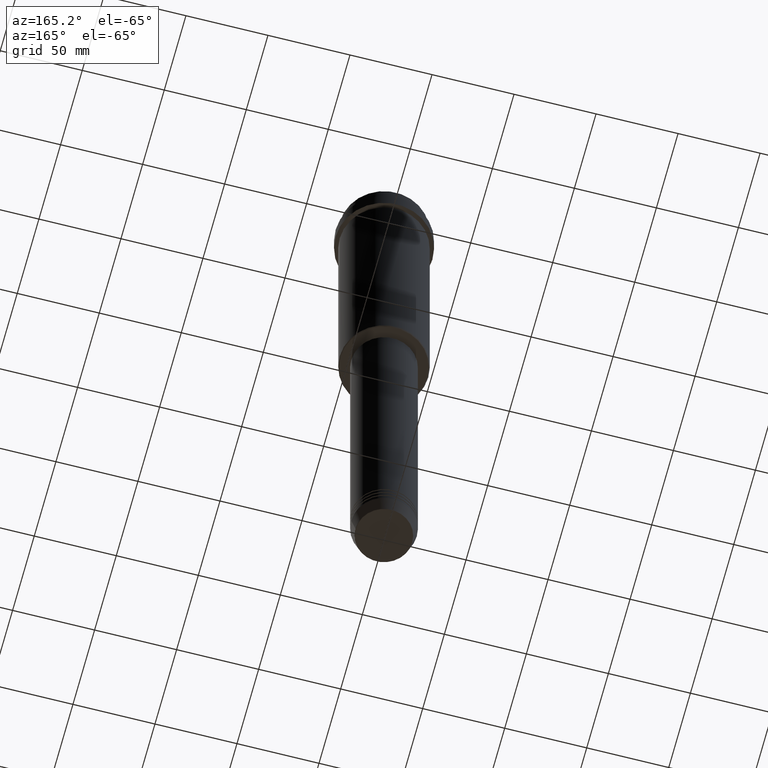
[diagram: clean part render]
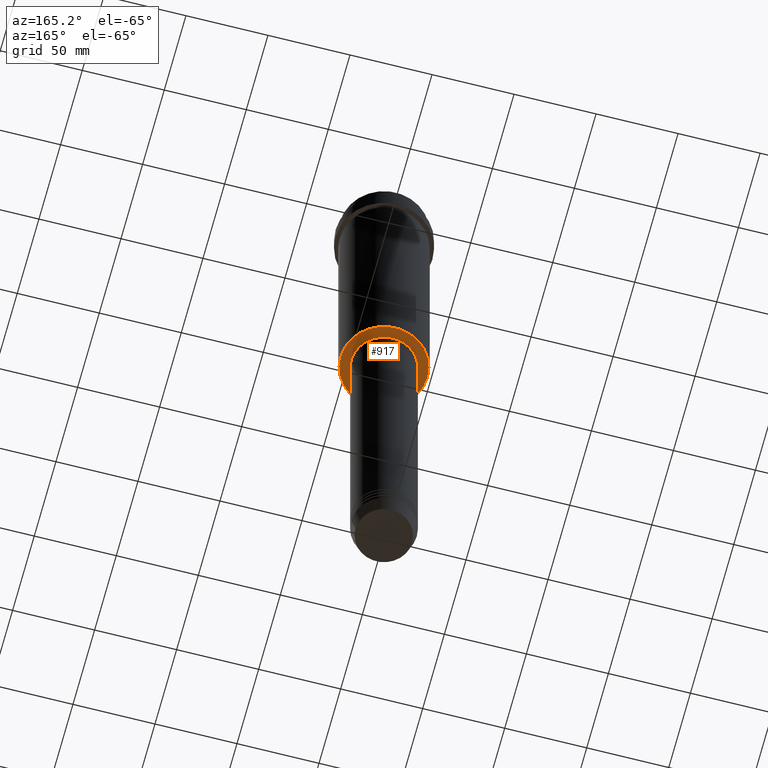
[diagram: same view with one face highlighted and labeled with its STEP entity id]
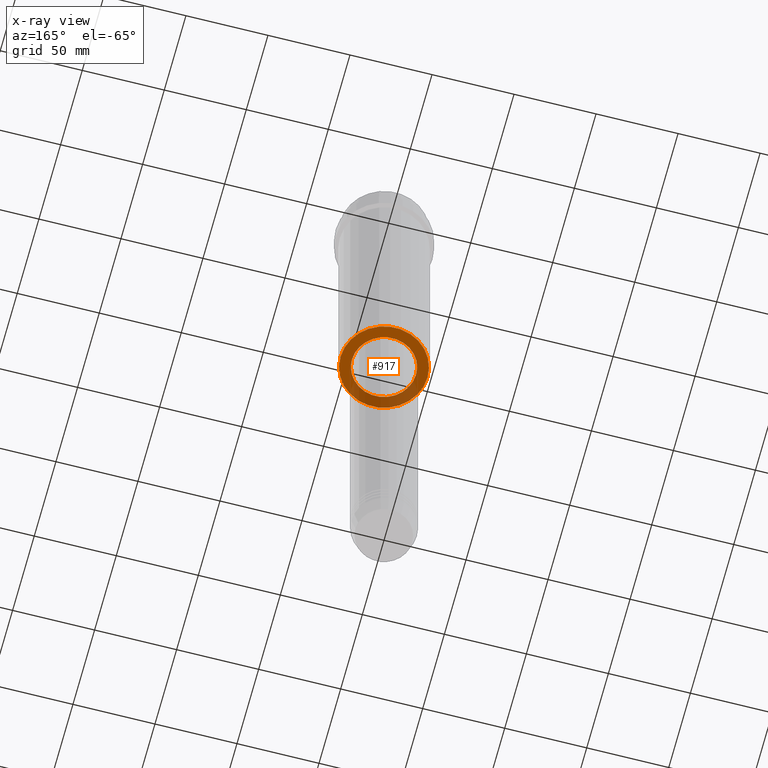
[diagram: x-ray of the same camera — body ghosted, the highlighted face saturated]
A machine part, auxiliary view. The second image highlights one B-rep face of the part: STEP entity #917.
The next image is the same camera in x-ray: the body ghosted, the highlighted face saturated — about 31% of this face is hidden behind the body in this view.
In plain terms, the highlighted planar face has unit normal (0, 0, -1).
Its self-contained STEP definition (entity closure, byte-faithful):
#24 = DIRECTION ( 'NONE',  ( -1.000000000000000000, 0.000000000000000000, -0.000000000000000000 ) ) ;
#27 = DIRECTION ( 'NONE',  ( 0.000000000000000000, 0.000000000000000000, -1.000000000000000000 ) ) ;
#49 = VERTEX_POINT ( 'NONE', #1391 ) ;
#83 = AXIS2_PLACEMENT_3D ( 'NONE', #1012, #27, #907 ) ;
#104 = CIRCLE ( 'NONE', #885, 19.49999999999999289 ) ;
#148 = CARTESIAN_POINT ( 'NONE',  ( 19.49999999999999289, 0.000000000000000000, -187.9999999999999716 ) ) ;
#163 = CARTESIAN_POINT ( 'NONE',  ( -26.50000000000007816, 3.275930187719175074E-15, -188.0000000000000000 ) ) ;
#186 = CARTESIAN_POINT ( 'NONE',  ( 0.000000000000000000, 0.000000000000000000, -187.9999999999999716 ) ) ;
#219 = AXIS2_PLACEMENT_3D ( 'NONE', #242, #678, #24 ) ;
#242 = CARTESIAN_POINT ( 'NONE',  ( 0.000000000000000000, 27.00000000000000355, -188.0000000000000000 ) ) ;
#243 = EDGE_CURVE ( 'NONE', #49, #591, #974, .T. ) ;
#293 = DIRECTION ( 'NONE',  ( -0.000000000000000000, -0.000000000000000000, 1.000000000000000000 ) ) ;
#305 = DIRECTION ( 'NONE',  ( 1.000000000000000000, 0.000000000000000000, 0.000000000000000000 ) ) ;
#416 = DIRECTION ( 'NONE',  ( 1.000000000000000000, 0.000000000000000000, 0.000000000000000000 ) ) ;
#441 = CARTESIAN_POINT ( 'NONE',  ( -19.49999999999999289, 2.388061258337338150E-15, -187.9999999999999716 ) ) ;
#489 = VERTEX_POINT ( 'NONE', #441 ) ;
#500 = DIRECTION ( 'NONE',  ( 0.000000000000000000, 0.000000000000000000, -1.000000000000000000 ) ) ;
#523 = CARTESIAN_POINT ( 'NONE',  ( 0.000000000000000000, 0.000000000000000000, -188.0000000000000000 ) ) ;
#556 = ORIENTED_EDGE ( 'NONE', *, *, #1141, .T. ) ;
#584 = CIRCLE ( 'NONE', #1388, 26.50000000000007816 ) ;
#591 = VERTEX_POINT ( 'NONE', #163 ) ;
#623 = DIRECTION ( 'NONE',  ( -0.000000000000000000, -0.000000000000000000, 1.000000000000000000 ) ) ;
#641 = ORIENTED_EDGE ( 'NONE', *, *, #243, .T. ) ;
#666 = FACE_OUTER_BOUND ( 'NONE', #1180, .T. ) ;
#678 = DIRECTION ( 'NONE',  ( 0.000000000000000000, 0.000000000000000000, -1.000000000000000000 ) ) ;
#885 = AXIS2_PLACEMENT_3D ( 'NONE', #186, #623, #305 ) ;
#907 = DIRECTION ( 'NONE',  ( -1.000000000000000000, 0.000000000000000000, 0.000000000000000000 ) ) ;
#917 = ADVANCED_FACE ( 'NONE', ( #666, #1225 ), #1310, .T. ) ;
#940 = DIRECTION ( 'NONE',  ( -1.000000000000000000, 0.000000000000000000, 0.000000000000000000 ) ) ;
#950 = VERTEX_POINT ( 'NONE', #148 ) ;
#960 = EDGE_LOOP ( 'NONE', ( #1121, #556 ) ) ;
#974 = CIRCLE ( 'NONE', #83, 26.50000000000007816 ) ;
#1012 = CARTESIAN_POINT ( 'NONE',  ( 0.000000000000000000, 0.000000000000000000, -188.0000000000000000 ) ) ;
#1050 = ORIENTED_EDGE ( 'NONE', *, *, #1097, .T. ) ;
#1075 = AXIS2_PLACEMENT_3D ( 'NONE', #1278, #293, #416 ) ;
#1097 = EDGE_CURVE ( 'NONE', #591, #49, #584, .T. ) ;
#1121 = ORIENTED_EDGE ( 'NONE', *, *, #1194, .T. ) ;
#1141 = EDGE_CURVE ( 'NONE', #489, #950, #104, .T. ) ;
#1180 = EDGE_LOOP ( 'NONE', ( #641, #1050 ) ) ;
#1194 = EDGE_CURVE ( 'NONE', #950, #489, #1226, .T. ) ;
#1225 = FACE_BOUND ( 'NONE', #960, .T. ) ;
#1226 = CIRCLE ( 'NONE', #1075, 19.49999999999999289 ) ;
#1278 = CARTESIAN_POINT ( 'NONE',  ( 0.000000000000000000, 0.000000000000000000, -187.9999999999999716 ) ) ;
#1310 = PLANE ( 'NONE',  #219 ) ;
#1388 = AXIS2_PLACEMENT_3D ( 'NONE', #523, #500, #940 ) ;
#1391 = CARTESIAN_POINT ( 'NONE',  ( 26.50000000000007816, 0.000000000000000000, -188.0000000000000000 ) ) ;